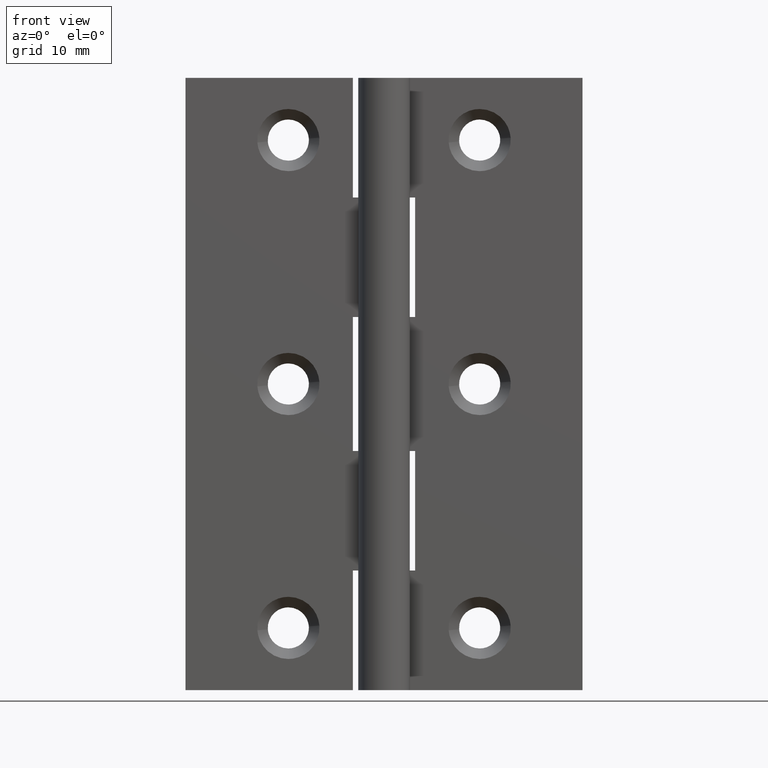
[diagram: clean part render]
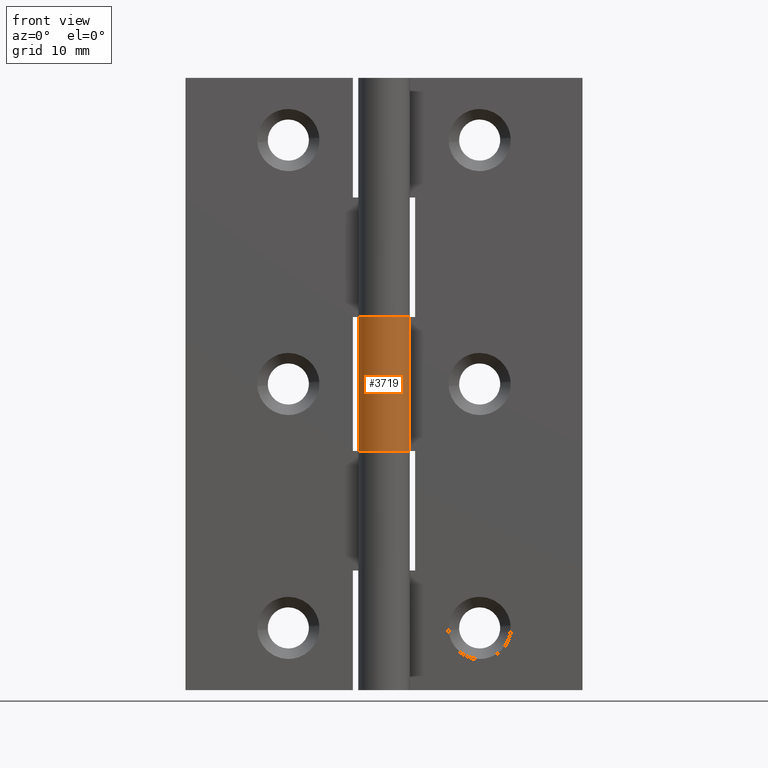
[diagram: same view with one face highlighted and labeled with its STEP entity id]
A machine part, front view. The second image highlights one B-rep face of the part: STEP entity #3719.
In plain terms, the highlighted face is a freeform B-spline surface patch.
Its self-contained STEP definition (entity closure, byte-faithful):
#3127=CARTESIAN_POINT('',(2.277608394786080,1.450000000000000,39.000006999999947));
#3128=VERTEX_POINT('',#3127);
#3129=CARTESIAN_POINT('',(0.0,2.700001000000000,39.000006999999897));
#3130=VERTEX_POINT('',#3129);
#3131=CARTESIAN_POINT('',(2.277608394786080,1.450000000000000,39.000006999999947));
#3132=CARTESIAN_POINT('',(3.402760049365833,-0.317348882027742,39.000007000000004));
#3133=CARTESIAN_POINT('',(1.970202022019800,-1.846159761025621,39.000006999999982));
#3134=CARTESIAN_POINT('',(0.537643994673767,-3.374970640023499,39.000006999999975));
#3135=CARTESIAN_POINT('',(-1.299038105676658,-2.366959575708923,39.000006999999933));
#3136=CARTESIAN_POINT('',(-3.135720206027081,-1.358948511394347,39.000006999999876));
#3137=CARTESIAN_POINT('',(-2.615415091760209,0.670526597772459,39.000006999999869));
#3138=CARTESIAN_POINT('',(-2.095109977493336,2.700001706939268,39.000006999999862));
#3139=CARTESIAN_POINT('',(0.0,2.700001000000000,39.000006999999897));
#3147=(BOUNDED_CURVE()B_SPLINE_CURVE(2,(#3131,#3132,#3133,#3134,#3135,#3136,#3137,#3138,#3139),.UNSPECIFIED.,.F.,.U.)B_SPLINE_CURVE_WITH_KNOTS((3,2,2,2,3),(0.0,0.250000000000000,0.500000000000000,0.750000000000000,1.0),.UNSPECIFIED.)CURVE()GEOMETRIC_REPRESENTATION_ITEM()RATIONAL_B_SPLINE_CURVE((1.0,0.790045133626194,1.0,0.790045133626194,1.0,0.790045133626194,1.0,0.790045133626194,1.0))REPRESENTATION_ITEM(''));
#3148=EDGE_CURVE('',#3128,#3130,#3147,.T.);
#3303=CARTESIAN_POINT('',(2.277608394786080,1.450000000000000,25.0));
#3304=VERTEX_POINT('',#3303);
#3305=CARTESIAN_POINT('',(0.0,2.700001000000000,25.0));
#3306=VERTEX_POINT('',#3305);
#3307=CARTESIAN_POINT('',(2.277608394786080,1.450000000000000,25.0));
#3308=CARTESIAN_POINT('',(3.402760049365833,-0.317348882027742,25.0));
#3309=CARTESIAN_POINT('',(1.970202022019800,-1.846159761025621,25.0));
#3310=CARTESIAN_POINT('',(0.537643994673767,-3.374970640023499,25.0));
#3311=CARTESIAN_POINT('',(-1.299038105676658,-2.366959575708923,25.0));
#3312=CARTESIAN_POINT('',(-3.135720206027081,-1.358948511394347,25.0));
#3313=CARTESIAN_POINT('',(-2.615415091760209,0.670526597772459,25.0));
#3314=CARTESIAN_POINT('',(-2.095109977493336,2.700001706939268,25.0));
#3315=CARTESIAN_POINT('',(0.0,2.700001000000000,25.0));
#3323=(BOUNDED_CURVE()B_SPLINE_CURVE(2,(#3307,#3308,#3309,#3310,#3311,#3312,#3313,#3314,#3315),.UNSPECIFIED.,.F.,.U.)B_SPLINE_CURVE_WITH_KNOTS((3,2,2,2,3),(0.0,0.250000000000000,0.500000000000000,0.750000000000000,1.0),.UNSPECIFIED.)CURVE()GEOMETRIC_REPRESENTATION_ITEM()RATIONAL_B_SPLINE_CURVE((1.0,0.790045133626194,1.0,0.790045133626194,1.0,0.790045133626194,1.0,0.790045133626194,1.0))REPRESENTATION_ITEM(''));
#3324=EDGE_CURVE('',#3304,#3306,#3323,.T.);
#3683=CARTESIAN_POINT('',(2.225140709279442,1.529296839697048,24.649999824999998));
#3684=CARTESIAN_POINT('',(2.225140709279442,1.529296839697048,39.358757179374990));
#3685=CARTESIAN_POINT('',(4.147730332970872,-1.268088421205942,24.649999825000002));
#3686=CARTESIAN_POINT('',(4.147730332970872,-1.268088421205942,39.358757179374990));
#3687=CARTESIAN_POINT('',(0.989553312155601,-2.512127433551466,24.649999824999998));
#3688=CARTESIAN_POINT('',(0.989553312155601,-2.512127433551466,39.358757179374990));
#3689=CARTESIAN_POINT('',(-2.168623708659669,-3.756166445896991,24.649999825000002));
#3690=CARTESIAN_POINT('',(-2.168623708659669,-3.756166445896991,39.358757179374990));
#3691=CARTESIAN_POINT('',(-2.670342831077175,-0.399085410049946,24.649999824999998));
#3692=CARTESIAN_POINT('',(-2.670342831077175,-0.399085410049946,39.358757179374990));
#3693=CARTESIAN_POINT('',(-3.172061953494680,2.957995625797097,24.649999825000002));
#3694=CARTESIAN_POINT('',(-3.172061953494680,2.957995625797097,39.358757179374990));
#3695=CARTESIAN_POINT('',(0.211839558465185,2.691676801079445,24.649999824999998));
#3696=CARTESIAN_POINT('',(0.211839558465185,2.691676801079445,39.358757179374990));
#3704=(BOUNDED_SURFACE()B_SPLINE_SURFACE(1,2,((#3683,#3685,#3687,#3689,#3691,#3693,#3695),(#3684,#3686,#3688,#3690,#3692,#3694,#3696)),.UNSPECIFIED.,.F.,.F.,.U.)B_SPLINE_SURFACE_WITH_KNOTS((2,2),(3,2,2,3),(0.0,14.708757354374990),(0.0,5.209301600829762,10.418603201659520,15.627904802489290),.UNSPECIFIED.)GEOMETRIC_REPRESENTATION_ITEM()RATIONAL_B_SPLINE_SURFACE(((1.0,0.622514636637620,1.0,0.622514636637620,1.0,0.622514636637620,1.0),(1.0,0.622514636637620,1.0,0.622514636637620,1.0,0.622514636637620,1.0)))REPRESENTATION_ITEM('')SURFACE());
#3705=CARTESIAN_POINT('',(2.277608394786080,1.450000000000000,25.0));
#3706=CARTESIAN_POINT('',(2.277608394786080,1.450000000000000,39.000006999999947));
#3707=QUASI_UNIFORM_CURVE('',1,(#3705,#3706),.UNSPECIFIED.,.F.,.U.);
#3708=EDGE_CURVE('',#3304,#3128,#3707,.T.);
#3709=ORIENTED_EDGE('',*,*,#3708,.T.);
#3710=ORIENTED_EDGE('',*,*,#3148,.T.);
#3711=CARTESIAN_POINT('',(0.0,2.700001000000000,25.0));
#3712=CARTESIAN_POINT('',(0.0,2.700001000000000,39.000006999999897));
#3713=QUASI_UNIFORM_CURVE('',1,(#3711,#3712),.UNSPECIFIED.,.F.,.U.);
#3714=EDGE_CURVE('',#3306,#3130,#3713,.T.);
#3715=ORIENTED_EDGE('',*,*,#3714,.F.);
#3716=ORIENTED_EDGE('',*,*,#3324,.F.);
#3717=EDGE_LOOP('',(#3709,#3710,#3715,#3716));
#3718=FACE_OUTER_BOUND('',#3717,.T.);
#3719=ADVANCED_FACE('',(#3718),#3704,.T.);